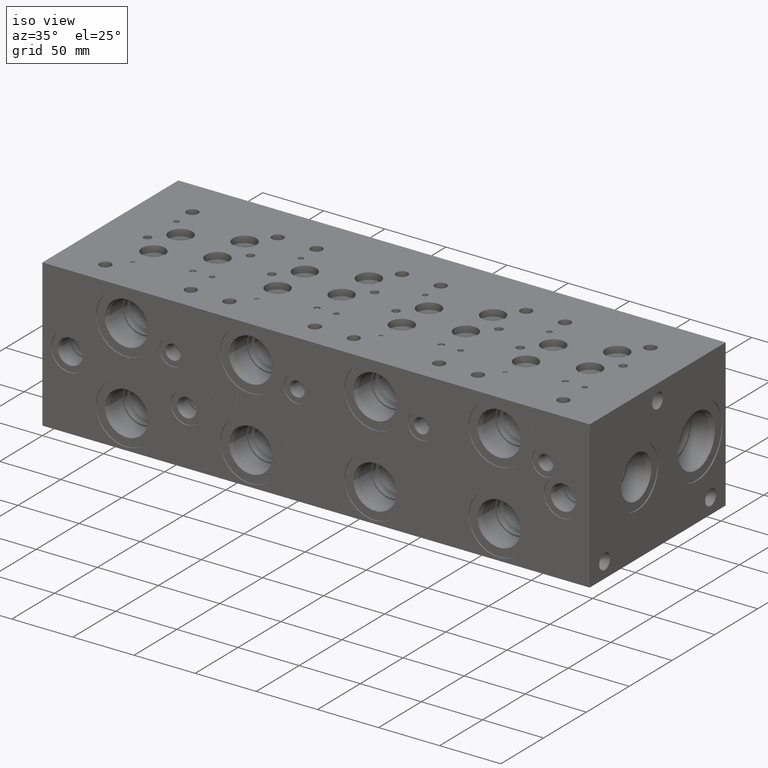
[diagram: clean part render]
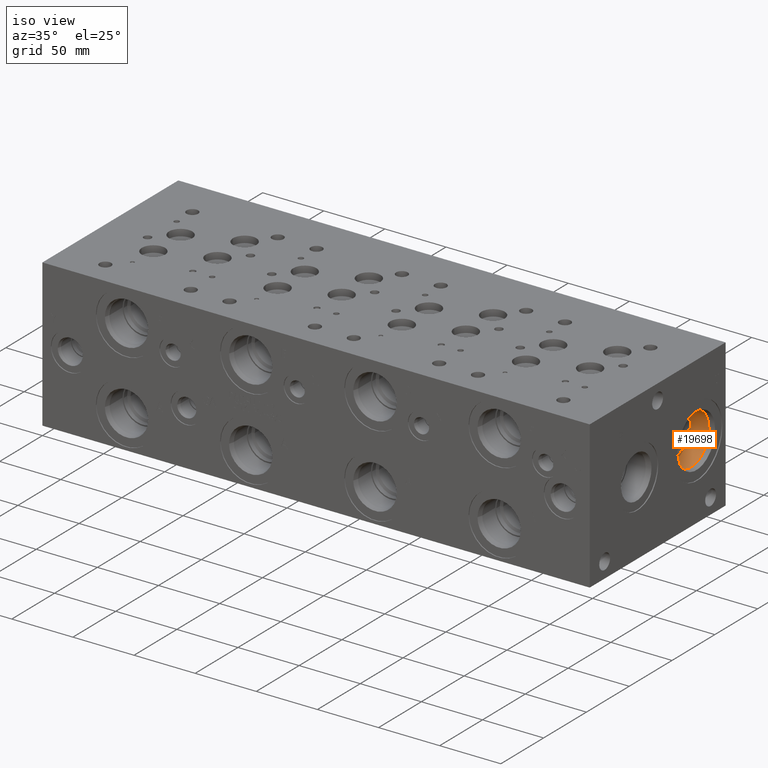
[diagram: same view with one face highlighted and labeled with its STEP entity id]
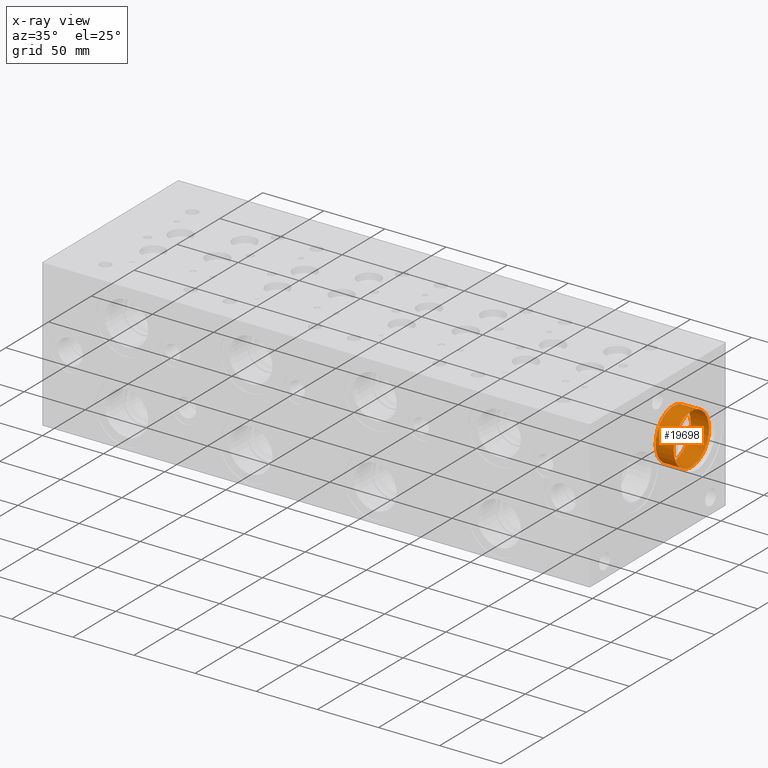
[diagram: x-ray of the same camera — body ghosted, the highlighted face saturated]
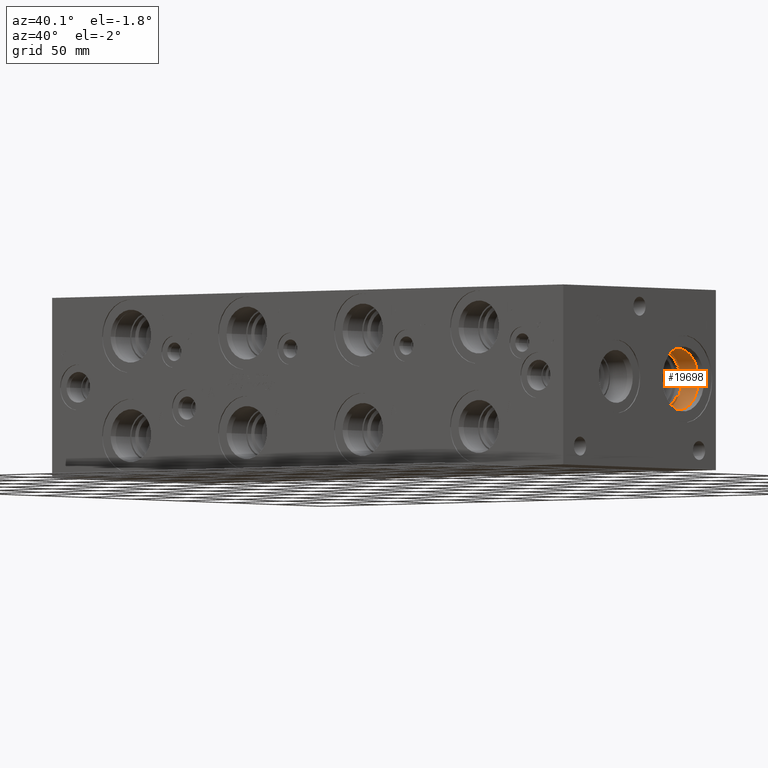
[diagram: same view with one face highlighted and labeled with its STEP entity id]
A machine part, iso view. The second image highlights one B-rep face of the part: STEP entity #19698.
The next image is the same camera in x-ray: the body ghosted, the highlighted face saturated — about 0% of this face is hidden behind the body in this view.
A second angle (auxiliary view) of the same face is appended — the face is thin or edge-on in the first view.
In plain terms, the highlighted cylindrical surface (bore or boss wall) has radius 20.6375 mm, axis along (1, 0, 0).
Its self-contained STEP definition (entity closure, byte-faithful):
#15=CYLINDRICAL_SURFACE('',#20678,20.6375);
#418=CIRCLE('',#20675,20.6375);
#419=CIRCLE('',#20676,20.6375);
#421=CIRCLE('',#20679,20.6375);
#2376=FACE_OUTER_BOUND('',#3525,.T.);
#3525=EDGE_LOOP('',(#15815,#15816,#15817,#15818,#15819));
#5490=LINE('',#32346,#7261);
#7261=VECTOR('',#24270,20.6375);
#8814=VERTEX_POINT('',#32337);
#8815=VERTEX_POINT('',#32338);
#8817=VERTEX_POINT('',#32344);
#11328=EDGE_CURVE('',#8814,#8815,#418,.T.);
#11329=EDGE_CURVE('',#8815,#8814,#419,.T.);
#11331=EDGE_CURVE('',#8817,#8817,#421,.T.);
#11332=EDGE_CURVE('',#8817,#8815,#5490,.T.);
#15815=ORIENTED_EDGE('',*,*,#11331,.F.);
#15816=ORIENTED_EDGE('',*,*,#11332,.T.);
#15817=ORIENTED_EDGE('',*,*,#11328,.F.);
#15818=ORIENTED_EDGE('',*,*,#11329,.F.);
#15819=ORIENTED_EDGE('',*,*,#11332,.F.);
#19698=ADVANCED_FACE('',(#2376),#15,.F.);
#20675=AXIS2_PLACEMENT_3D('',#32339,#24260,#24261);
#20676=AXIS2_PLACEMENT_3D('',#32340,#24262,#24263);
#20678=AXIS2_PLACEMENT_3D('',#32343,#24266,#24267);
#20679=AXIS2_PLACEMENT_3D('',#32345,#24268,#24269);
#24260=DIRECTION('center_axis',(1.,0.,0.));
#24261=DIRECTION('ref_axis',(0.,1.,0.));
#24262=DIRECTION('center_axis',(1.,0.,0.));
#24263=DIRECTION('ref_axis',(0.,1.,0.));
#24266=DIRECTION('center_axis',(1.,0.,0.));
#24267=DIRECTION('ref_axis',(0.,1.,0.));
#24268=DIRECTION('center_axis',(-1.,0.,0.));
#24269=DIRECTION('ref_axis',(0.,1.,0.));
#24270=DIRECTION('',(-1.,0.,0.));
#32337=CARTESIAN_POINT('',(427.8376,146.4691,60.325));
#32338=CARTESIAN_POINT('',(427.8376,105.1941,60.325));
#32339=CARTESIAN_POINT('Origin',(427.8376,125.8316,60.325));
#32340=CARTESIAN_POINT('Origin',(427.8376,125.8316,60.325));
#32343=CARTESIAN_POINT('Origin',(437.7563,125.8316,60.325));
#32344=CARTESIAN_POINT('',(442.704000017461,105.1941,60.325));
#32345=CARTESIAN_POINT('Origin',(442.704000017461,125.8316,60.325));
#32346=CARTESIAN_POINT('',(437.7563,105.1941,60.325));